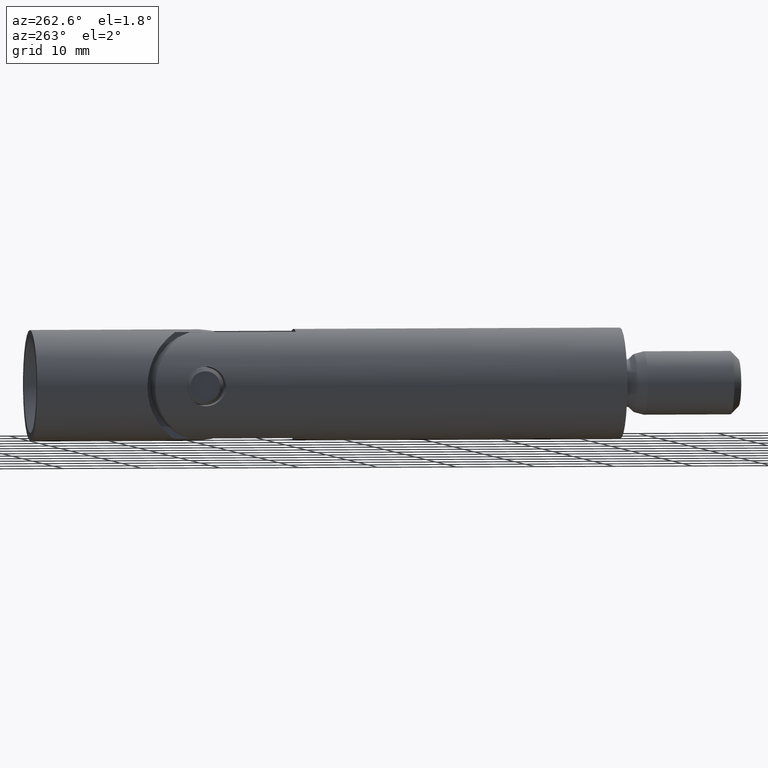
[diagram: clean part render]
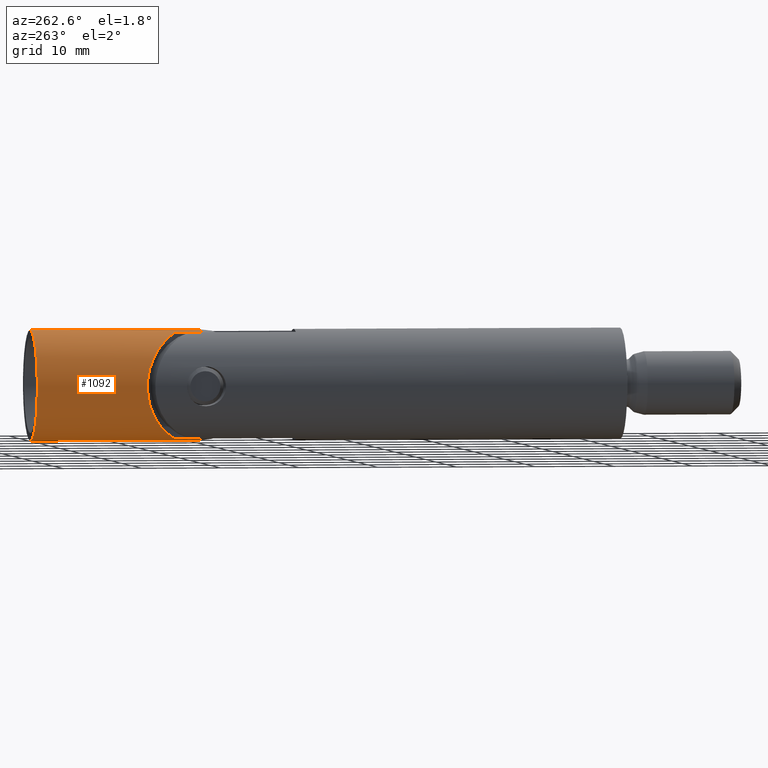
[diagram: same view with one face highlighted and labeled with its STEP entity id]
A machine part, auxiliary view. The second image highlights one B-rep face of the part: STEP entity #1092.
In plain terms, the highlighted cylindrical surface (partial cylindrical patch) has radius 7 mm, axis along (0, -1, 0).
Its self-contained STEP definition (entity closure, byte-faithful):
#41 = CARTESIAN_POINT ( 'NONE',  ( -1.950000000000002800, 10.32453004197585100, -6.722908596731042700 ) ) ;
#43 = CARTESIAN_POINT ( 'NONE',  ( -4.418235238543768000, 12.17237595118198500, 5.441084212362589800 ) ) ;
#56 = EDGE_CURVE ( 'NONE', #1839, #2681, #1904, .T. ) ;
#57 = CARTESIAN_POINT ( 'NONE',  ( -6.814322769489309400, 14.32695516634329100, -1.654401167873210900 ) ) ;
#71 = CARTESIAN_POINT ( 'NONE',  ( -4.140226643039588000, 11.93601273070631100, 5.654876513441517500 ) ) ;
#115 = CARTESIAN_POINT ( 'NONE',  ( -1.950000000000002800, 10.32453004197585100, -6.722908596731042700 ) ) ;
#122 = CARTESIAN_POINT ( 'NONE',  ( -3.265024405489924200, 11.22674275656985400, -6.201621510707287400 ) ) ;
#135 = DIRECTION ( 'NONE',  ( -0.0000000000000000000, 1.000000000000000000, -0.0000000000000000000 ) ) ;
#136 = EDGE_LOOP ( 'NONE', ( #2145, #986, #307, #1537, #1246, #2477, #2383, #2135 ) ) ;
#161 = CARTESIAN_POINT ( 'NONE',  ( -1.950000000000002800, 28.49999999999999600, -6.722908596731044500 ) ) ;
#178 = CARTESIAN_POINT ( 'NONE',  ( -1.950000000000002800, 28.49999999999999600, 6.722908596731044500 ) ) ;
#182 = EDGE_CURVE ( 'NONE', #2090, #2019, #1803, .T. ) ;
#231 = CARTESIAN_POINT ( 'NONE',  ( 0.0000000000000000000, 7.000000000000006200, 0.0000000000000000000 ) ) ;
#263 = CARTESIAN_POINT ( 'NONE',  ( -7.000256635555436100, 14.50023952649446600, -0.2027957035193858300 ) ) ;
#273 = CARTESIAN_POINT ( 'NONE',  ( -5.656038050651917000, 13.26340737878419400, -4.140319695485017000 ) ) ;
#296 = CARTESIAN_POINT ( 'NONE',  ( -4.140961515818542400, 11.93662949334892100, -5.654341404042596300 ) ) ;
#301 = DIRECTION ( 'NONE',  ( 0.0000000000000000000, 0.0000000000000000000, -1.000000000000000000 ) ) ;
#307 = ORIENTED_EDGE ( 'NONE', *, *, #2494, .T. ) ;
#322 = FACE_OUTER_BOUND ( 'NONE', #136, .T. ) ;
#330 = CARTESIAN_POINT ( 'NONE',  ( -3.564602812422098300, 11.46420672566132000, -6.034297455266274000 ) ) ;
#337 = CARTESIAN_POINT ( 'NONE',  ( 0.0000000000000000000, 28.49999999999999600, 0.0000000000000000000 ) ) ;
#391 = DIRECTION ( 'NONE',  ( 0.0000000000000000000, -1.000000000000000000, 0.0000000000000000000 ) ) ;
#484 = LINE ( 'NONE', #161, #1323 ) ;
#494 = CARTESIAN_POINT ( 'NONE',  ( -5.654576034015631700, 13.26208731391236200, 4.142294364678231300 ) ) ;
#504 = CARTESIAN_POINT ( 'NONE',  ( -6.700882615440144200, 14.22142852395074000, 2.063528938807302400 ) ) ;
#513 = CARTESIAN_POINT ( 'NONE',  ( -6.422220379667328900, 13.96362812804042800, 2.813372513939231400 ) ) ;
#532 = CARTESIAN_POINT ( 'NONE',  ( -2.306107063237206500, 10.53340430827661200, -6.619618664505850300 ) ) ;
#540 = CARTESIAN_POINT ( 'NONE',  ( -2.635452037258108100, 10.76172532256926000, -6.494219451929867900 ) ) ;
#576 = VERTEX_POINT ( 'NONE', #41 ) ;
#594 = CARTESIAN_POINT ( 'NONE',  ( 0.0000000000000000000, 7.000000000000006200, -7.000000000000000000 ) ) ;
#609 = VERTEX_POINT ( 'NONE', #1536 ) ;
#680 = CARTESIAN_POINT ( 'NONE',  ( -1.950000000000002800, 7.000000000000006200, -6.722908596731044500 ) ) ;
#686 = CARTESIAN_POINT ( 'NONE',  ( -6.953142436852674600, 14.45628217287742200, -0.8354810569120725300 ) ) ;
#704 = CARTESIAN_POINT ( 'NONE',  ( -6.999470610290154900, 14.49950590298611400, 0.4316102636623351300 ) ) ;
#723 = CARTESIAN_POINT ( 'NONE',  ( 8.572527594031486000E-016, 28.49999999999999600, 7.000000000000012400 ) ) ;
#748 = EDGE_CURVE ( 'NONE', #1414, #1289, #1834, .T. ) ;
#755 = AXIS2_PLACEMENT_3D ( 'NONE', #2515, #135, #301 ) ;
#841 = DIRECTION ( 'NONE',  ( 5.329070518200749800E-015, 0.0000000000000000000, -1.000000000000000000 ) ) ;
#883 = CARTESIAN_POINT ( 'NONE',  ( -5.193821729379060100, 12.84938386149928400, 4.707127422488038200 ) ) ;
#891 = CARTESIAN_POINT ( 'NONE',  ( -6.960953539074267800, 14.46352089831164800, 0.8465594003277516800 ) ) ;
#900 = CARTESIAN_POINT ( 'NONE',  ( -4.946381072541939300, 12.63021811940327900, 4.965834704692676700 ) ) ;
#938 = DIRECTION ( 'NONE',  ( 0.0000000000000000000, -1.000000000000000000, 0.0000000000000000000 ) ) ;
#986 = ORIENTED_EDGE ( 'NONE', *, *, #748, .F. ) ;
#1092 = ADVANCED_FACE ( 'NONE', ( #322 ), #2171, .T. ) ;
#1133 = CARTESIAN_POINT ( 'NONE',  ( -6.424066879518380600, 13.96533038685004500, -2.809406356594777300 ) ) ;
#1135 = DIRECTION ( 'NONE',  ( 0.0000000000000000000, 0.0000000000000000000, -1.000000000000000000 ) ) ;
#1246 = ORIENTED_EDGE ( 'NONE', *, *, #2370, .F. ) ;
#1255 = LINE ( 'NONE', #1472, #2157 ) ;
#1289 = VERTEX_POINT ( 'NONE', #1394 ) ;
#1301 = CARTESIAN_POINT ( 'NONE',  ( -1.950000000000002800, 10.32453004197585100, 6.722908596731042700 ) ) ;
#1307 = AXIS2_PLACEMENT_3D ( 'NONE', #2183, #1546, #1135 ) ;
#1323 = VECTOR ( 'NONE', #2742, 1000.000000000000000 ) ;
#1330 = CARTESIAN_POINT ( 'NONE',  ( -6.812558786842101800, 14.32531414006004600, 1.661499252859990300 ) ) ;
#1339 = CARTESIAN_POINT ( 'NONE',  ( -2.635033722047114900, 10.76143532232463700, 6.494381920834501700 ) ) ;
#1345 = CARTESIAN_POINT ( 'NONE',  ( -6.256051893255673200, 13.81043507403476400, -3.164085553930648500 ) ) ;
#1358 = B_SPLINE_CURVE_WITH_KNOTS ( 'NONE', 3,
 ( #2205, #1583, #1339, #2455, #1365, #71, #43, #900, #883, #494, #2418, #1820, #513, #504, #1330, #891, #704, #263, #1777, #686, #2216, #57, #1805, #1133, #1345, #1576, #273, #2068, #1626, #2468, #296, #330, #122, #540, #532, #115 ),
 .UNSPECIFIED., .F., .F.,
 ( 4, 2, 2, 2, 2, 2, 2, 2, 2, 2, 2, 2, 2, 2, 2, 2, 2, 4 ),
 ( 6.505213034913026600E-019, 0.001251244527019294800, 0.002502489054038588800, 0.003753733581057883600, 0.005004978108077177600, 0.006256222635096471600, 0.007507467162115766400, 0.008758711689135058700, 0.01000995621615435400, 0.01063557847966400100, 0.01126120074317364800, 0.01251244527019294100, 0.01376368979721223600, 0.01501493432423153100, 0.01626617885125082600, 0.01751742337827011700, 0.01876866790528941200, 0.02001991243230870700 ),
 .UNSPECIFIED. ) ;
#1365 = CARTESIAN_POINT ( 'NONE',  ( -3.563903459038168200, 11.46364793496352500, 6.034707712280944500 ) ) ;
#1394 = CARTESIAN_POINT ( 'NONE',  ( 8.572527594031471200E-016, 28.49999999999999600, 7.000000000000000000 ) ) ;
#1414 = VERTEX_POINT ( 'NONE', #2146 ) ;
#1472 = CARTESIAN_POINT ( 'NONE',  ( 0.0000000000000000000, 28.49999999999999600, -7.000000000000012400 ) ) ;
#1536 = CARTESIAN_POINT ( 'NONE',  ( 8.572527594031471200E-016, 7.000000000000006200, 7.000000000000000000 ) ) ;
#1537 = ORIENTED_EDGE ( 'NONE', *, *, #56, .T. ) ;
#1546 = DIRECTION ( 'NONE',  ( 0.0000000000000000000, -1.000000000000000000, 0.0000000000000000000 ) ) ;
#1576 = CARTESIAN_POINT ( 'NONE',  ( -5.869340193552215400, 13.45701129890466800, -3.834118983032859700 ) ) ;
#1583 = CARTESIAN_POINT ( 'NONE',  ( -2.305848758249878600, 10.53325279972685500, 6.619693586649744600 ) ) ;
#1626 = CARTESIAN_POINT ( 'NONE',  ( -4.947520440491219400, 12.63121566598941000, -4.964735002572239400 ) ) ;
#1638 = AXIS2_PLACEMENT_3D ( 'NONE', #337, #2514, #2732 ) ;
#1653 = EDGE_CURVE ( 'NONE', #2019, #576, #1358, .T. ) ;
#1755 = EDGE_CURVE ( 'NONE', #1289, #609, #2300, .T. ) ;
#1777 = CARTESIAN_POINT ( 'NONE',  ( -6.990755331370471600, 14.49136931391670300, -0.4166032171452508400 ) ) ;
#1803 = LINE ( 'NONE', #178, #2280 ) ;
#1805 = CARTESIAN_POINT ( 'NONE',  ( -6.703303110206070100, 14.22367390686691700, -2.055997753330923500 ) ) ;
#1820 = CARTESIAN_POINT ( 'NONE',  ( -6.254624015500178700, 13.80912402549097500, 3.166839300591186100 ) ) ;
#1834 = CIRCLE ( 'NONE', #1638, 7.000000000000012400 ) ;
#1839 = VERTEX_POINT ( 'NONE', #594 ) ;
#1904 = CIRCLE ( 'NONE', #755, 7.000000000000012400 ) ;
#1911 = DIRECTION ( 'NONE',  ( -0.0000000000000000000, 1.000000000000000000, -0.0000000000000000000 ) ) ;
#1932 = CARTESIAN_POINT ( 'NONE',  ( -1.950000000000002800, 6.999999999999992000, 6.722908596731044500 ) ) ;
#1952 = VECTOR ( 'NONE', #938, 1000.000000000000000 ) ;
#1960 = DIRECTION ( 'NONE',  ( -0.0000000000000000000, 1.000000000000000000, -0.0000000000000000000 ) ) ;
#2019 = VERTEX_POINT ( 'NONE', #1301 ) ;
#2068 = CARTESIAN_POINT ( 'NONE',  ( -5.195148306165057400, 12.85056163844426200, -4.705682489096966800 ) ) ;
#2071 = EDGE_CURVE ( 'NONE', #2090, #609, #2361, .T. ) ;
#2090 = VERTEX_POINT ( 'NONE', #1932 ) ;
#2135 = ORIENTED_EDGE ( 'NONE', *, *, #2071, .T. ) ;
#2145 = ORIENTED_EDGE ( 'NONE', *, *, #1755, .F. ) ;
#2146 = CARTESIAN_POINT ( 'NONE',  ( 0.0000000000000000000, 28.49999999999999600, -7.000000000000000000 ) ) ;
#2157 = VECTOR ( 'NONE', #391, 1000.000000000000000 ) ;
#2171 = CYLINDRICAL_SURFACE ( 'NONE', #1307, 7.000000000000012400 ) ;
#2183 = CARTESIAN_POINT ( 'NONE',  ( 0.0000000000000000000, 28.49999999999999600, 0.0000000000000000000 ) ) ;
#2205 = CARTESIAN_POINT ( 'NONE',  ( -1.950000000000002800, 10.32453004197585100, 6.722908596731042700 ) ) ;
#2216 = CARTESIAN_POINT ( 'NONE',  ( -6.925090090326429900, 14.43012059524227000, -1.042178846754717900 ) ) ;
#2280 = VECTOR ( 'NONE', #1911, 1000.000000000000000 ) ;
#2300 = LINE ( 'NONE', #723, #1952 ) ;
#2361 = CIRCLE ( 'NONE', #2745, 7.000000000000012400 ) ;
#2370 = EDGE_CURVE ( 'NONE', #576, #2681, #484, .T. ) ;
#2383 = ORIENTED_EDGE ( 'NONE', *, *, #182, .F. ) ;
#2418 = CARTESIAN_POINT ( 'NONE',  ( -5.868225340663285800, 13.45599853377070700, 3.835769034005793700 ) ) ;
#2455 = CARTESIAN_POINT ( 'NONE',  ( -3.264383611198423000, 11.22625050473428500, 6.201951216264656200 ) ) ;
#2468 = CARTESIAN_POINT ( 'NONE',  ( -4.418712226561547500, 12.17277963081462200, -5.440729217088446900 ) ) ;
#2477 = ORIENTED_EDGE ( 'NONE', *, *, #1653, .F. ) ;
#2494 = EDGE_CURVE ( 'NONE', #1414, #1839, #1255, .T. ) ;
#2514 = DIRECTION ( 'NONE',  ( 0.0000000000000000000, 1.000000000000000000, 0.0000000000000000000 ) ) ;
#2515 = CARTESIAN_POINT ( 'NONE',  ( 0.0000000000000000000, 7.000000000000006200, 0.0000000000000000000 ) ) ;
#2681 = VERTEX_POINT ( 'NONE', #680 ) ;
#2732 = DIRECTION ( 'NONE',  ( 0.0000000000000000000, 0.0000000000000000000, 1.000000000000000000 ) ) ;
#2742 = DIRECTION ( 'NONE',  ( 0.0000000000000000000, -1.000000000000000000, 0.0000000000000000000 ) ) ;
#2745 = AXIS2_PLACEMENT_3D ( 'NONE', #231, #1960, #841 ) ;